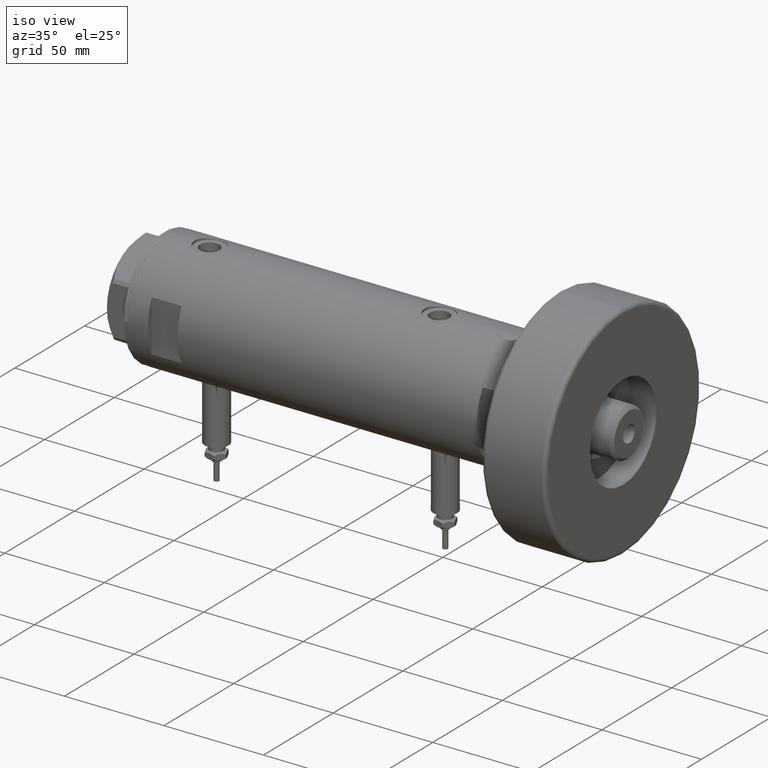
[diagram: clean part render]
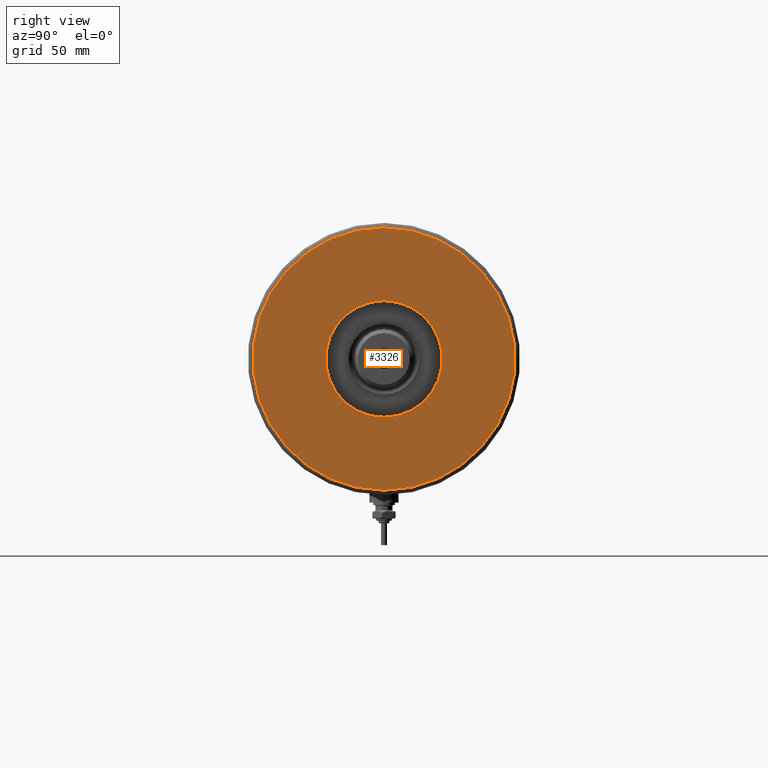
[diagram: tour spotlight — one face highlighted and labeled with its STEP entity id]
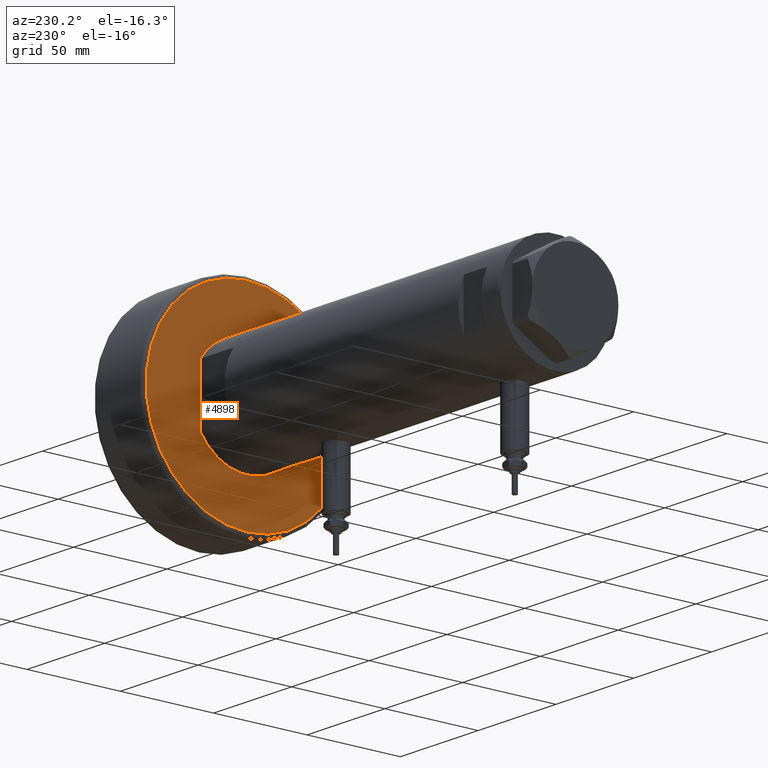
[diagram: tour spotlight — one face highlighted and labeled with its STEP entity id]
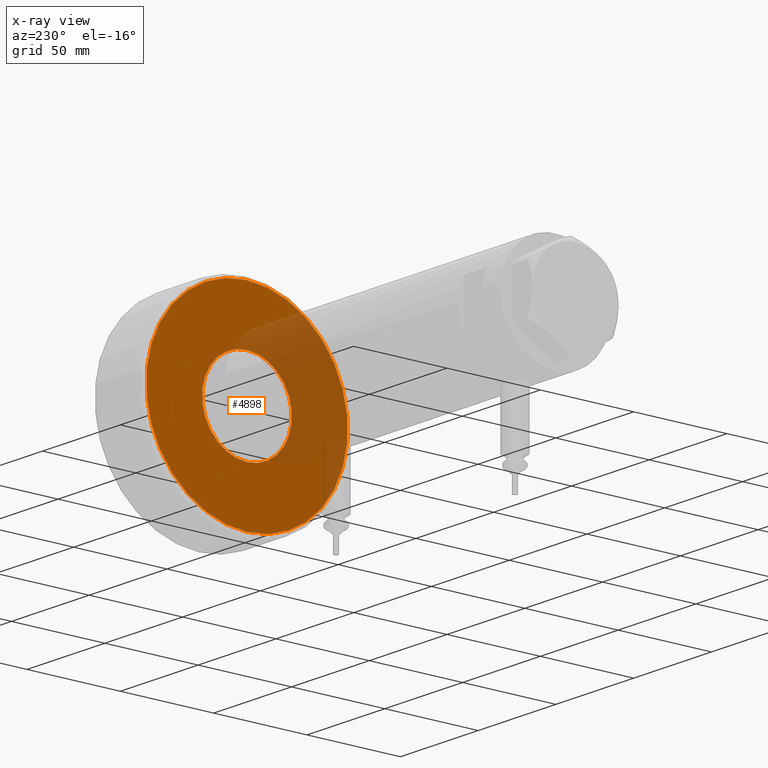
[diagram: x-ray of the same camera — body ghosted, this tour face saturated]
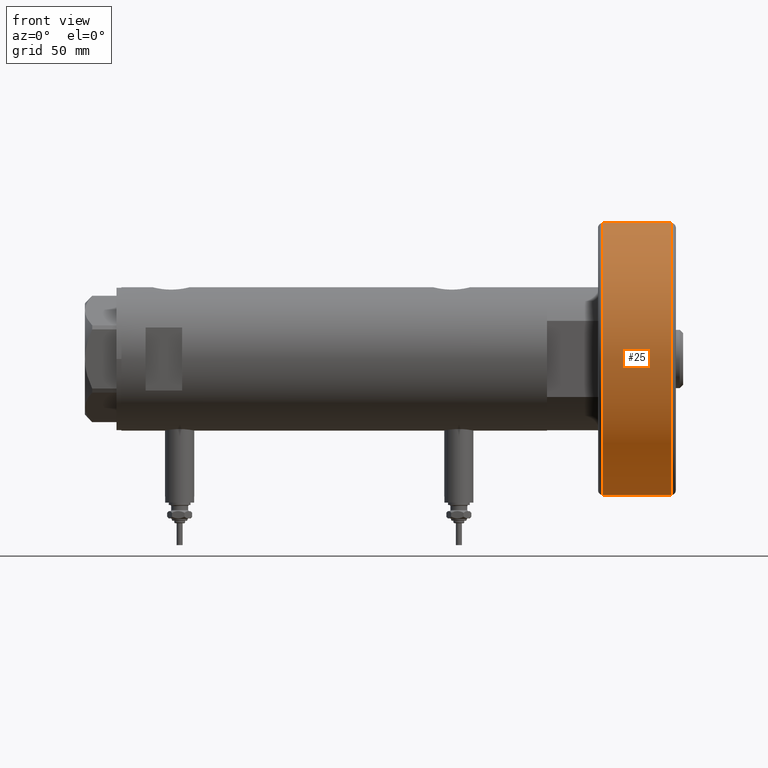
[diagram: tour spotlight — one face highlighted and labeled with its STEP entity id]
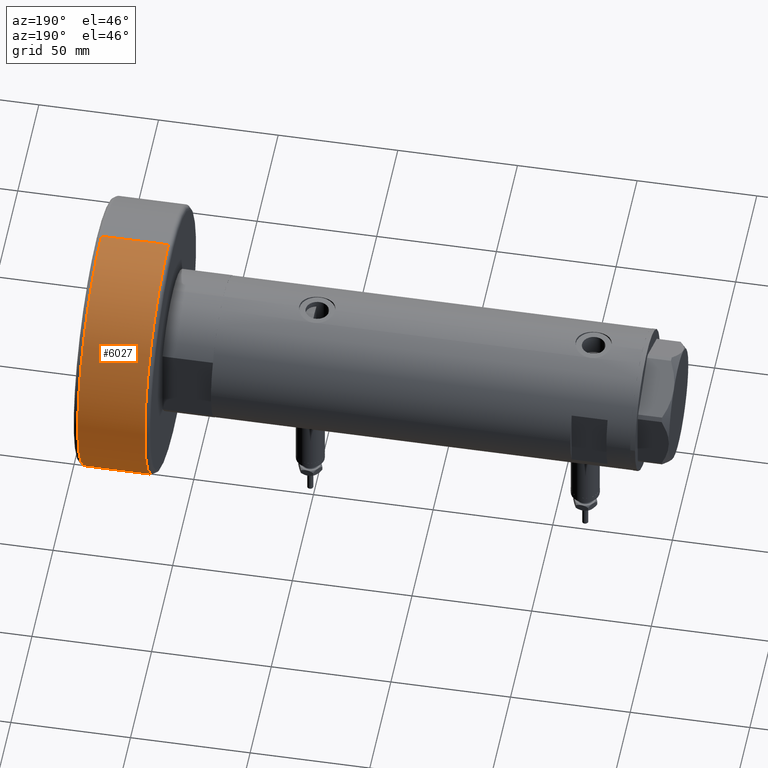
[diagram: tour spotlight — one face highlighted and labeled with its STEP entity id]
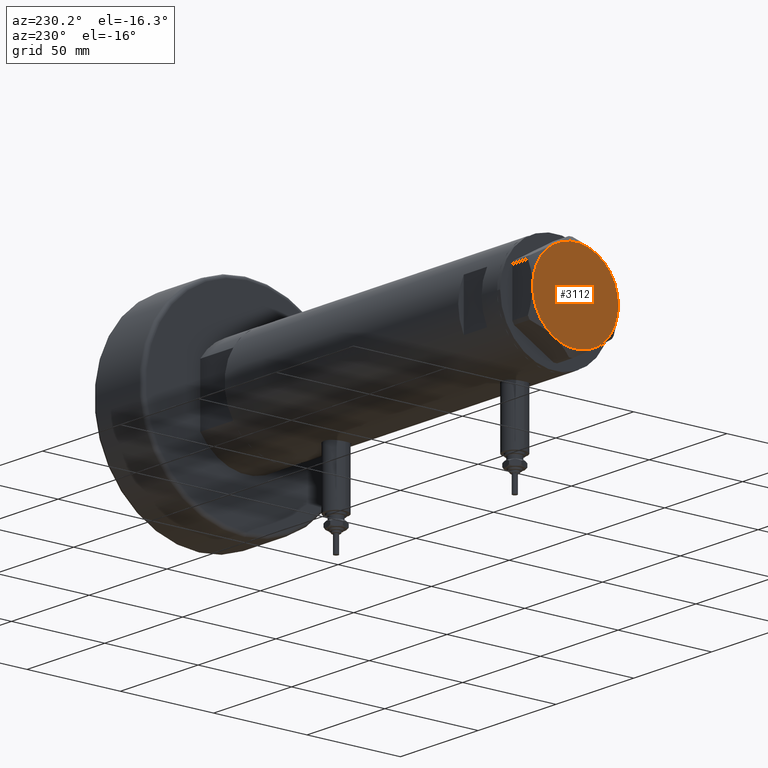
[diagram: tour spotlight — one face highlighted and labeled with its STEP entity id]
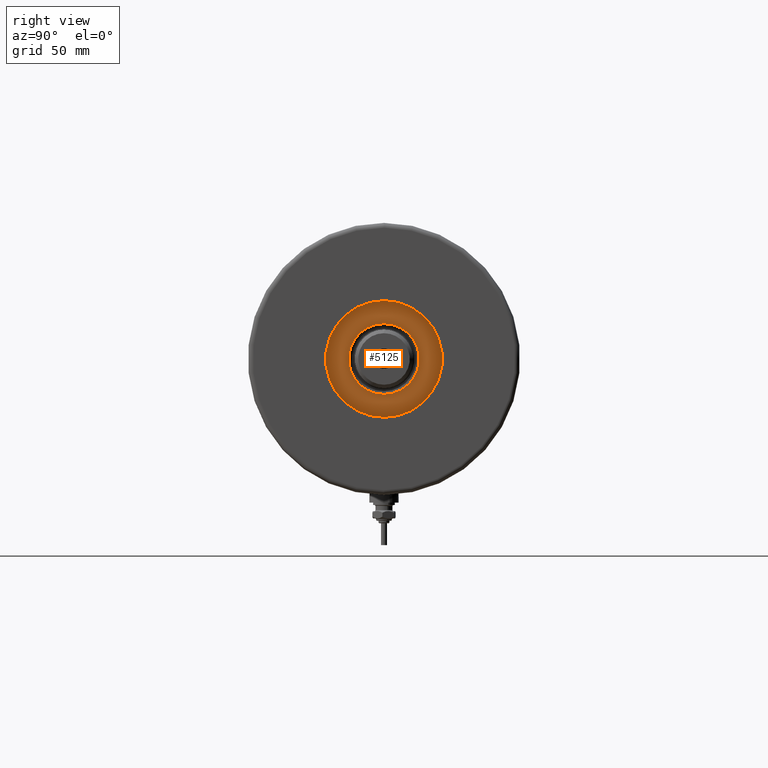
[diagram: tour spotlight — one face highlighted and labeled with its STEP entity id]
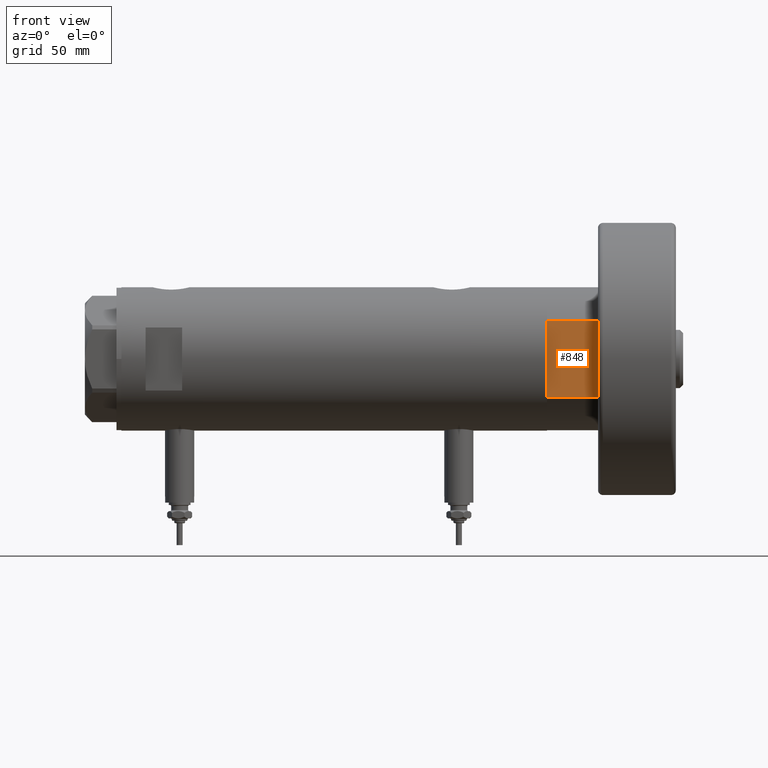
[diagram: tour spotlight — one face highlighted and labeled with its STEP entity id]
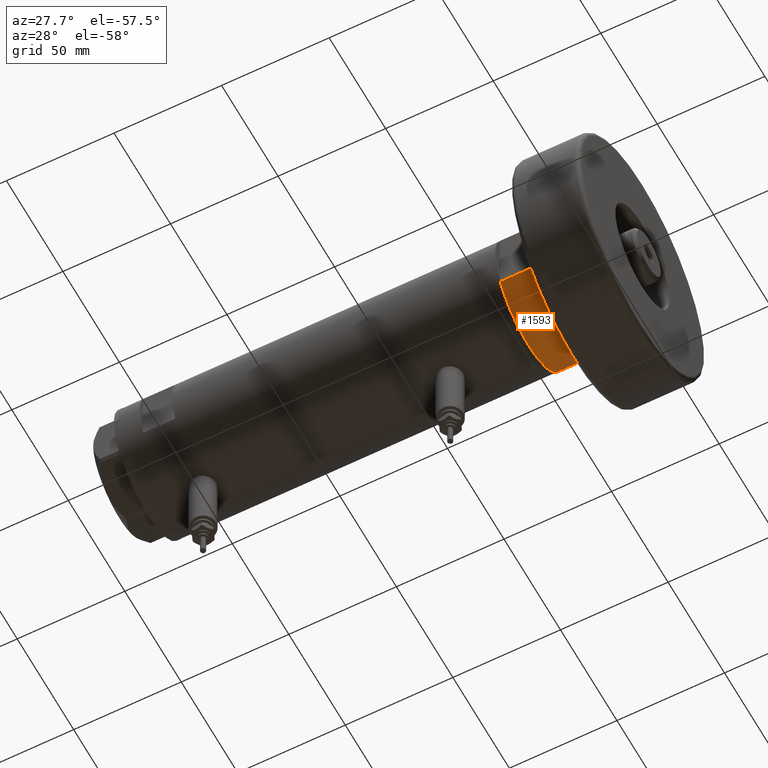
[diagram: tour spotlight — one face highlighted and labeled with its STEP entity id]
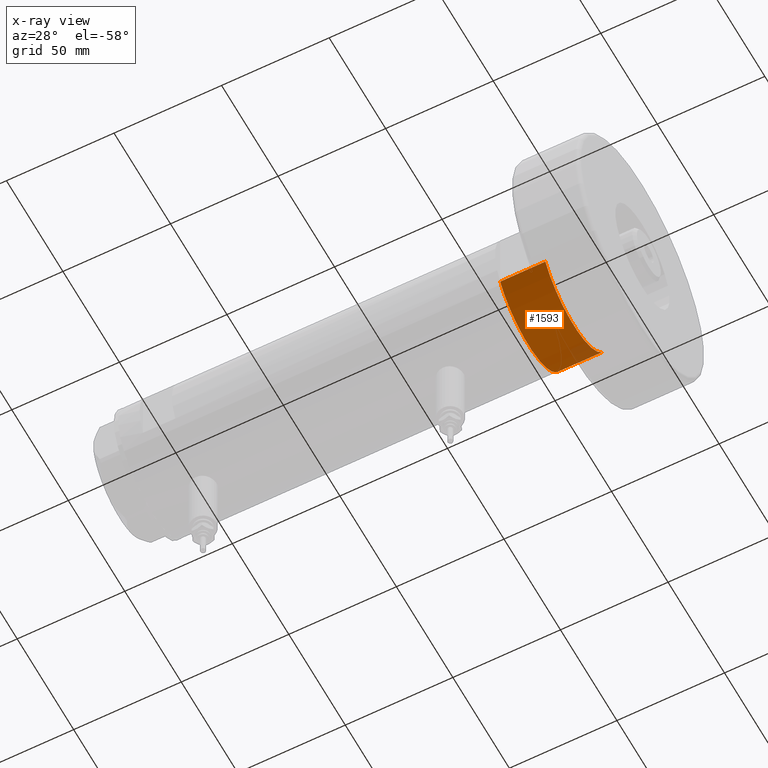
[diagram: x-ray of the same camera — body ghosted, this tour face saturated]
A machine part: a face-by-face anatomy tour. The part has 222 B-rep faces; the first image is the clean iso view, then the 8 largest visible faces are spotlighted one at a time (largest first), each with its STEP entity span.

Face 1 — right view, entity #3326. In plain terms, the highlighted planar face has unit normal (1, 0, -0).
Definition (entity closure, byte-faithful):
#139 = CARTESIAN_POINT ( 'NONE',  ( -24.00000000000000355, 2.939152317953648289E-15, 32.00000000000000000 ) ) ;
#141 = AXIS2_PLACEMENT_3D ( 'NONE', #1641, #1064, #162 ) ;
#162 = DIRECTION ( 'NONE',  ( 1.000000000000000000, 0.000000000000000000, 0.000000000000000000 ) ) ;
#229 = CARTESIAN_POINT ( 'NONE',  ( -54.00000000000000000, 6.735557395310443404E-15, 32.00000000000000000 ) ) ;
#248 = DIRECTION ( 'NONE',  ( 1.000000000000000000, 0.000000000000000000, -0.000000000000000000 ) ) ;
#313 = PLANE ( 'NONE',  #1688 ) ;
#346 = CIRCLE ( 'NONE', #141, 24.00000000000000355 ) ;
#373 = CARTESIAN_POINT ( 'NONE',  ( 54.00000000000000000, 0.000000000000000000, 32.00000000000000000 ) ) ;
#407 = DIRECTION ( 'NONE',  ( 1.000000000000000000, 0.000000000000000000, 0.000000000000000000 ) ) ;
#420 = DIRECTION ( 'NONE',  ( 0.000000000000000000, 0.000000000000000000, 1.000000000000000000 ) ) ;
#458 = EDGE_CURVE ( 'NONE', #1603, #4244, #874, .T. ) ;
#665 = ORIENTED_EDGE ( 'NONE', *, *, #4313, .T. ) ;
#762 = CARTESIAN_POINT ( 'NONE',  ( 0.000000000000000000, 0.000000000000000000, 32.00000000000000000 ) ) ;
#874 = CIRCLE ( 'NONE', #1695, 24.00000000000000355 ) ;
#960 = CARTESIAN_POINT ( 'NONE',  ( 24.00000000000000355, 0.000000000000000000, 32.00000000000000000 ) ) ;
#1006 = ORIENTED_EDGE ( 'NONE', *, *, #458, .F. ) ;
#1064 = DIRECTION ( 'NONE',  ( 0.000000000000000000, 0.000000000000000000, 1.000000000000000000 ) ) ;
#1248 = DIRECTION ( 'NONE',  ( 0.000000000000000000, 0.000000000000000000, 1.000000000000000000 ) ) ;
#1290 = AXIS2_PLACEMENT_3D ( 'NONE', #1421, #420, #2367 ) ;
#1421 = CARTESIAN_POINT ( 'NONE',  ( 0.000000000000000000, 0.000000000000000000, 32.00000000000000000 ) ) ;
#1603 = VERTEX_POINT ( 'NONE', #139 ) ;
#1641 = CARTESIAN_POINT ( 'NONE',  ( 0.000000000000000000, 0.000000000000000000, 32.00000000000000000 ) ) ;
#1688 = AXIS2_PLACEMENT_3D ( 'NONE', #762, #4171, #248 ) ;
#1695 = AXIS2_PLACEMENT_3D ( 'NONE', #5207, #4733, #407 ) ;
#2292 = EDGE_CURVE ( 'NONE', #5179, #2652, #4414, .T. ) ;
#2303 = CIRCLE ( 'NONE', #1290, 54.00000000000000000 ) ;
#2367 = DIRECTION ( 'NONE',  ( 1.000000000000000000, 0.000000000000000000, 0.000000000000000000 ) ) ;
#2652 = VERTEX_POINT ( 'NONE', #229 ) ;
#2690 = AXIS2_PLACEMENT_3D ( 'NONE', #3956, #1248, #5161 ) ;
#2844 = EDGE_CURVE ( 'NONE', #4244, #1603, #346, .T. ) ;
#3165 = EDGE_LOOP ( 'NONE', ( #6122, #1006 ) ) ;
#3198 = EDGE_LOOP ( 'NONE', ( #6012, #665 ) ) ;
#3326 = ADVANCED_FACE ( 'NONE', ( #3661, #5092 ), #313, .T. ) ;
#3661 = FACE_OUTER_BOUND ( 'NONE', #3198, .T. ) ;
#3956 = CARTESIAN_POINT ( 'NONE',  ( 0.000000000000000000, 0.000000000000000000, 32.00000000000000000 ) ) ;
#4171 = DIRECTION ( 'NONE',  ( 0.000000000000000000, 0.000000000000000000, 1.000000000000000000 ) ) ;
#4244 = VERTEX_POINT ( 'NONE', #960 ) ;
#4313 = EDGE_CURVE ( 'NONE', #2652, #5179, #2303, .T. ) ;
#4414 = CIRCLE ( 'NONE', #2690, 54.00000000000000000 ) ;
#4733 = DIRECTION ( 'NONE',  ( 0.000000000000000000, 0.000000000000000000, 1.000000000000000000 ) ) ;
#5092 = FACE_BOUND ( 'NONE', #3165, .T. ) ;
#5161 = DIRECTION ( 'NONE',  ( 1.000000000000000000, 0.000000000000000000, 0.000000000000000000 ) ) ;
#5179 = VERTEX_POINT ( 'NONE', #373 ) ;
#5207 = CARTESIAN_POINT ( 'NONE',  ( 0.000000000000000000, 0.000000000000000000, 32.00000000000000000 ) ) ;
#6012 = ORIENTED_EDGE ( 'NONE', *, *, #2292, .T. ) ;
#6122 = ORIENTED_EDGE ( 'NONE', *, *, #2844, .F. ) ;

Face 2 — auxiliary view, entity #4898. An x-ray twin of the same camera follows (body ghosted, this face saturated) — the face is partly hidden behind the body. In plain terms, the highlighted planar face has unit normal (1, 0, -0).
Definition (entity closure, byte-faithful):
#416 = DIRECTION ( 'NONE',  ( 0.000000000000000000, 0.000000000000000000, 1.000000000000000000 ) ) ;
#444 = PLANE ( 'NONE',  #781 ) ;
#781 = AXIS2_PLACEMENT_3D ( 'NONE', #4844, #416, #2039 ) ;
#785 = AXIS2_PLACEMENT_3D ( 'NONE', #5530, #2647, #4584 ) ;
#986 = CIRCLE ( 'NONE', #2611, 24.00000000000000355 ) ;
#1247 = ORIENTED_EDGE ( 'NONE', *, *, #5164, .T. ) ;
#1483 = CIRCLE ( 'NONE', #5743, 24.00000000000000355 ) ;
#1948 = DIRECTION ( 'NONE',  ( -0.000000000000000000, -0.000000000000000000, -1.000000000000000000 ) ) ;
#1989 = CARTESIAN_POINT ( 'NONE',  ( 0.000000000000000000, 0.000000000000000000, 0.000000000000000000 ) ) ;
#2039 = DIRECTION ( 'NONE',  ( 1.000000000000000000, 0.000000000000000000, -0.000000000000000000 ) ) ;
#2268 = EDGE_LOOP ( 'NONE', ( #2816, #2972 ) ) ;
#2298 = CIRCLE ( 'NONE', #3015, 54.00000000000000000 ) ;
#2380 = ORIENTED_EDGE ( 'NONE', *, *, #3770, .T. ) ;
#2552 = CARTESIAN_POINT ( 'NONE',  ( -24.00000000000000355, 2.939152317953648289E-15, 0.000000000000000000 ) ) ;
#2580 = CARTESIAN_POINT ( 'NONE',  ( 0.000000000000000000, 0.000000000000000000, 0.000000000000000000 ) ) ;
#2611 = AXIS2_PLACEMENT_3D ( 'NONE', #1989, #4007, #3037 ) ;
#2647 = DIRECTION ( 'NONE',  ( -0.000000000000000000, -0.000000000000000000, -1.000000000000000000 ) ) ;
#2816 = ORIENTED_EDGE ( 'NONE', *, *, #3244, .T. ) ;
#2885 = DIRECTION ( 'NONE',  ( 1.000000000000000000, 0.000000000000000000, 0.000000000000000000 ) ) ;
#2909 = EDGE_LOOP ( 'NONE', ( #1247, #2380 ) ) ;
#2972 = ORIENTED_EDGE ( 'NONE', *, *, #4397, .T. ) ;
#3015 = AXIS2_PLACEMENT_3D ( 'NONE', #5324, #1948, #2885 ) ;
#3037 = DIRECTION ( 'NONE',  ( 1.000000000000000000, 0.000000000000000000, 0.000000000000000000 ) ) ;
#3235 = VERTEX_POINT ( 'NONE', #2552 ) ;
#3244 = EDGE_CURVE ( 'NONE', #5096, #3235, #1483, .T. ) ;
#3337 = CARTESIAN_POINT ( 'NONE',  ( -54.00000000000000000, 6.735557395310443404E-15, 0.000000000000000000 ) ) ;
#3770 = EDGE_CURVE ( 'NONE', #3785, #3805, #2298, .T. ) ;
#3785 = VERTEX_POINT ( 'NONE', #3337 ) ;
#3799 = CARTESIAN_POINT ( 'NONE',  ( 54.00000000000000000, 0.000000000000000000, 0.000000000000000000 ) ) ;
#3805 = VERTEX_POINT ( 'NONE', #3799 ) ;
#4007 = DIRECTION ( 'NONE',  ( 0.000000000000000000, 0.000000000000000000, 1.000000000000000000 ) ) ;
#4332 = FACE_BOUND ( 'NONE', #2268, .T. ) ;
#4369 = FACE_OUTER_BOUND ( 'NONE', #2909, .T. ) ;
#4397 = EDGE_CURVE ( 'NONE', #3235, #5096, #986, .T. ) ;
#4584 = DIRECTION ( 'NONE',  ( 1.000000000000000000, 0.000000000000000000, 0.000000000000000000 ) ) ;
#4844 = CARTESIAN_POINT ( 'NONE',  ( 0.000000000000000000, 0.000000000000000000, 0.000000000000000000 ) ) ;
#4898 = ADVANCED_FACE ( 'NONE', ( #4369, #4332 ), #444, .F. ) ;
#5096 = VERTEX_POINT ( 'NONE', #5116 ) ;
#5116 = CARTESIAN_POINT ( 'NONE',  ( 24.00000000000000355, 0.000000000000000000, 0.000000000000000000 ) ) ;
#5164 = EDGE_CURVE ( 'NONE', #3805, #3785, #5969, .T. ) ;
#5324 = CARTESIAN_POINT ( 'NONE',  ( 0.000000000000000000, 0.000000000000000000, 0.000000000000000000 ) ) ;
#5441 = DIRECTION ( 'NONE',  ( 1.000000000000000000, 0.000000000000000000, 0.000000000000000000 ) ) ;
#5530 = CARTESIAN_POINT ( 'NONE',  ( 0.000000000000000000, 0.000000000000000000, 0.000000000000000000 ) ) ;
#5743 = AXIS2_PLACEMENT_3D ( 'NONE', #2580, #5893, #5441 ) ;
#5893 = DIRECTION ( 'NONE',  ( 0.000000000000000000, 0.000000000000000000, 1.000000000000000000 ) ) ;
#5969 = CIRCLE ( 'NONE', #785, 54.00000000000000000 ) ;

Face 3 — front view, entity #25. In plain terms, the highlighted cylindrical surface (partial cylindrical patch) has radius 56 mm, axis along (-1, -0, 0).
Definition (entity closure, byte-faithful):
#25 = ADVANCED_FACE ( 'NONE', ( #2966 ), #4422, .T. ) ;
#34 = VECTOR ( 'NONE', #5960, 1000.000000000000000 ) ;
#136 = VECTOR ( 'NONE', #5833, 1000.000000000000000 ) ;
#241 = ORIENTED_EDGE ( 'NONE', *, *, #2115, .F. ) ;
#1909 = CARTESIAN_POINT ( 'NONE',  ( -56.00000000000000000, 0.000000000000000000, 30.00000000000000000 ) ) ;
#1964 = EDGE_CURVE ( 'NONE', #3138, #2137, #6051, .T. ) ;
#1982 = ORIENTED_EDGE ( 'NONE', *, *, #1964, .T. ) ;
#2006 = DIRECTION ( 'NONE',  ( 1.000000000000000000, 0.000000000000000000, 0.000000000000000000 ) ) ;
#2064 = DIRECTION ( 'NONE',  ( -0.000000000000000000, -0.000000000000000000, -1.000000000000000000 ) ) ;
#2086 = CARTESIAN_POINT ( 'NONE',  ( -56.00000000000000000, 0.000000000000000000, 32.00000000000000000 ) ) ;
#2115 = EDGE_CURVE ( 'NONE', #3138, #4788, #6252, .T. ) ;
#2137 = VERTEX_POINT ( 'NONE', #1909 ) ;
#2198 = AXIS2_PLACEMENT_3D ( 'NONE', #2597, #2064, #2006 ) ;
#2218 = CARTESIAN_POINT ( 'NONE',  ( 56.00000000000000000, 6.858022075225178552E-15, 2.000000000000001776 ) ) ;
#2244 = EDGE_CURVE ( 'NONE', #2137, #4974, #4913, .T. ) ;
#2553 = ORIENTED_EDGE ( 'NONE', *, *, #2244, .T. ) ;
#2597 = CARTESIAN_POINT ( 'NONE',  ( 0.000000000000000000, 0.000000000000000000, 30.00000000000000000 ) ) ;
#2853 = EDGE_CURVE ( 'NONE', #4974, #4788, #6043, .T. ) ;
#2876 = CARTESIAN_POINT ( 'NONE',  ( 56.00000000000000000, 6.858022075225178552E-15, 30.00000000000000000 ) ) ;
#2937 = DIRECTION ( 'NONE',  ( -0.000000000000000000, -0.000000000000000000, -1.000000000000000000 ) ) ;
#2966 = FACE_OUTER_BOUND ( 'NONE', #5701, .T. ) ;
#3010 = CARTESIAN_POINT ( 'NONE',  ( 0.000000000000000000, 0.000000000000000000, 2.000000000000001776 ) ) ;
#3072 = DIRECTION ( 'NONE',  ( 0.000000000000000000, 0.000000000000000000, 1.000000000000000000 ) ) ;
#3138 = VERTEX_POINT ( 'NONE', #2876 ) ;
#3614 = AXIS2_PLACEMENT_3D ( 'NONE', #5887, #2937, #4875 ) ;
#3911 = CARTESIAN_POINT ( 'NONE',  ( -56.00000000000000000, 0.000000000000000000, 2.000000000000001776 ) ) ;
#4278 = CARTESIAN_POINT ( 'NONE',  ( 56.00000000000000000, 6.858022075225178552E-15, 32.00000000000000000 ) ) ;
#4422 = CYLINDRICAL_SURFACE ( 'NONE', #3614, 56.00000000000000000 ) ;
#4788 = VERTEX_POINT ( 'NONE', #2218 ) ;
#4875 = DIRECTION ( 'NONE',  ( -1.000000000000000000, 0.000000000000000000, 0.000000000000000000 ) ) ;
#4913 = LINE ( 'NONE', #2086, #34 ) ;
#4974 = VERTEX_POINT ( 'NONE', #3911 ) ;
#5005 = DIRECTION ( 'NONE',  ( 1.000000000000000000, 0.000000000000000000, 0.000000000000000000 ) ) ;
#5698 = ORIENTED_EDGE ( 'NONE', *, *, #2853, .T. ) ;
#5701 = EDGE_LOOP ( 'NONE', ( #241, #1982, #2553, #5698 ) ) ;
#5739 = AXIS2_PLACEMENT_3D ( 'NONE', #3010, #3072, #5005 ) ;
#5833 = DIRECTION ( 'NONE',  ( -0.000000000000000000, -0.000000000000000000, -1.000000000000000000 ) ) ;
#5887 = CARTESIAN_POINT ( 'NONE',  ( 0.000000000000000000, 0.000000000000000000, 32.00000000000000000 ) ) ;
#5960 = DIRECTION ( 'NONE',  ( -0.000000000000000000, -0.000000000000000000, -1.000000000000000000 ) ) ;
#6043 = CIRCLE ( 'NONE', #5739, 56.00000000000000000 ) ;
#6051 = CIRCLE ( 'NONE', #2198, 56.00000000000000000 ) ;
#6252 = LINE ( 'NONE', #4278, #136 ) ;

Face 4 — auxiliary view, entity #6027. In plain terms, the highlighted cylindrical surface (partial cylindrical patch) has radius 56 mm, axis along (-1, -0, 0).
Definition (entity closure, byte-faithful):
#34 = VECTOR ( 'NONE', #5960, 1000.000000000000000 ) ;
#136 = VECTOR ( 'NONE', #5833, 1000.000000000000000 ) ;
#271 = DIRECTION ( 'NONE',  ( 1.000000000000000000, 0.000000000000000000, 0.000000000000000000 ) ) ;
#684 = DIRECTION ( 'NONE',  ( -0.000000000000000000, -0.000000000000000000, -1.000000000000000000 ) ) ;
#1132 = FACE_OUTER_BOUND ( 'NONE', #5533, .T. ) ;
#1513 = AXIS2_PLACEMENT_3D ( 'NONE', #4153, #684, #2881 ) ;
#1696 = CIRCLE ( 'NONE', #3518, 56.00000000000000000 ) ;
#1909 = CARTESIAN_POINT ( 'NONE',  ( -56.00000000000000000, 0.000000000000000000, 30.00000000000000000 ) ) ;
#2086 = CARTESIAN_POINT ( 'NONE',  ( -56.00000000000000000, 0.000000000000000000, 32.00000000000000000 ) ) ;
#2115 = EDGE_CURVE ( 'NONE', #3138, #4788, #6252, .T. ) ;
#2137 = VERTEX_POINT ( 'NONE', #1909 ) ;
#2218 = CARTESIAN_POINT ( 'NONE',  ( 56.00000000000000000, 6.858022075225178552E-15, 2.000000000000001776 ) ) ;
#2222 = CIRCLE ( 'NONE', #3938, 56.00000000000000000 ) ;
#2244 = EDGE_CURVE ( 'NONE', #2137, #4974, #4913, .T. ) ;
#2508 = DIRECTION ( 'NONE',  ( 0.000000000000000000, 0.000000000000000000, 1.000000000000000000 ) ) ;
#2525 = ORIENTED_EDGE ( 'NONE', *, *, #2244, .F. ) ;
#2876 = CARTESIAN_POINT ( 'NONE',  ( 56.00000000000000000, 6.858022075225178552E-15, 30.00000000000000000 ) ) ;
#2881 = DIRECTION ( 'NONE',  ( -1.000000000000000000, 0.000000000000000000, 0.000000000000000000 ) ) ;
#3138 = VERTEX_POINT ( 'NONE', #2876 ) ;
#3518 = AXIS2_PLACEMENT_3D ( 'NONE', #3706, #6099, #271 ) ;
#3579 = CYLINDRICAL_SURFACE ( 'NONE', #1513, 56.00000000000000000 ) ;
#3588 = EDGE_CURVE ( 'NONE', #2137, #3138, #1696, .T. ) ;
#3706 = CARTESIAN_POINT ( 'NONE',  ( 0.000000000000000000, 0.000000000000000000, 30.00000000000000000 ) ) ;
#3911 = CARTESIAN_POINT ( 'NONE',  ( -56.00000000000000000, 0.000000000000000000, 2.000000000000001776 ) ) ;
#3938 = AXIS2_PLACEMENT_3D ( 'NONE', #4409, #2508, #5327 ) ;
#4153 = CARTESIAN_POINT ( 'NONE',  ( 0.000000000000000000, 0.000000000000000000, 32.00000000000000000 ) ) ;
#4278 = CARTESIAN_POINT ( 'NONE',  ( 56.00000000000000000, 6.858022075225178552E-15, 32.00000000000000000 ) ) ;
#4409 = CARTESIAN_POINT ( 'NONE',  ( 0.000000000000000000, 0.000000000000000000, 2.000000000000001776 ) ) ;
#4788 = VERTEX_POINT ( 'NONE', #2218 ) ;
#4913 = LINE ( 'NONE', #2086, #34 ) ;
#4974 = VERTEX_POINT ( 'NONE', #3911 ) ;
#5327 = DIRECTION ( 'NONE',  ( 1.000000000000000000, 0.000000000000000000, 0.000000000000000000 ) ) ;
#5492 = ORIENTED_EDGE ( 'NONE', *, *, #5824, .T. ) ;
#5533 = EDGE_LOOP ( 'NONE', ( #5820, #5942, #5492, #2525 ) ) ;
#5820 = ORIENTED_EDGE ( 'NONE', *, *, #3588, .T. ) ;
#5824 = EDGE_CURVE ( 'NONE', #4788, #4974, #2222, .T. ) ;
#5833 = DIRECTION ( 'NONE',  ( -0.000000000000000000, -0.000000000000000000, -1.000000000000000000 ) ) ;
#5942 = ORIENTED_EDGE ( 'NONE', *, *, #2115, .T. ) ;
#5960 = DIRECTION ( 'NONE',  ( -0.000000000000000000, -0.000000000000000000, -1.000000000000000000 ) ) ;
#6027 = ADVANCED_FACE ( 'NONE', ( #1132 ), #3579, .T. ) ;
#6099 = DIRECTION ( 'NONE',  ( -0.000000000000000000, -0.000000000000000000, -1.000000000000000000 ) ) ;
#6252 = LINE ( 'NONE', #4278, #136 ) ;

Face 5 — auxiliary view, entity #3112. In plain terms, the highlighted planar face has unit normal (-1, -0, 0).
Definition (entity closure, byte-faithful):
#168 = CARTESIAN_POINT ( 'NONE',  ( 11.49999999999990408, 19.91858428704219364, 13.00000000000000000 ) ) ;
#621 = DIRECTION ( 'NONE',  ( 0.000000000000000000, 0.000000000000000000, 1.000000000000000000 ) ) ;
#676 = CIRCLE ( 'NONE', #3720, 23.00000000000004619 ) ;
#733 = DIRECTION ( 'NONE',  ( 0.000000000000000000, 0.000000000000000000, 1.000000000000000000 ) ) ;
#844 = EDGE_CURVE ( 'NONE', #1726, #4949, #676, .T. ) ;
#1030 = VERTEX_POINT ( 'NONE', #4853 ) ;
#1070 = CIRCLE ( 'NONE', #3413, 23.00000000000004619 ) ;
#1162 = ORIENTED_EDGE ( 'NONE', *, *, #844, .T. ) ;
#1250 = DIRECTION ( 'NONE',  ( 0.000000000000000000, 0.000000000000000000, 1.000000000000000000 ) ) ;
#1254 = DIRECTION ( 'NONE',  ( 0.000000000000000000, 0.000000000000000000, 1.000000000000000000 ) ) ;
#1319 = DIRECTION ( 'NONE',  ( 1.000000000000000000, 0.000000000000000000, 0.000000000000000000 ) ) ;
#1419 = PLANE ( 'NONE',  #3412 ) ;
#1451 = EDGE_CURVE ( 'NONE', #2033, #1704, #1070, .T. ) ;
#1492 = CARTESIAN_POINT ( 'NONE',  ( -11.49999999999990585, -19.91858428704219364, 13.00000000000000000 ) ) ;
#1649 = CARTESIAN_POINT ( 'NONE',  ( 0.000000000000000000, 0.000000000000000000, 13.00000000000000000 ) ) ;
#1683 = AXIS2_PLACEMENT_3D ( 'NONE', #5610, #1250, #1319 ) ;
#1704 = VERTEX_POINT ( 'NONE', #4219 ) ;
#1726 = VERTEX_POINT ( 'NONE', #1492 ) ;
#1788 = CARTESIAN_POINT ( 'NONE',  ( 0.000000000000000000, 0.000000000000000000, 13.00000000000000000 ) ) ;
#1865 = CARTESIAN_POINT ( 'NONE',  ( 0.000000000000000000, 0.000000000000000000, 13.00000000000000000 ) ) ;
#1918 = EDGE_LOOP ( 'NONE', ( #4529, #2368, #5632, #4843, #5402, #1162 ) ) ;
#1929 = EDGE_CURVE ( 'NONE', #1704, #2919, #3610, .T. ) ;
#1935 = CARTESIAN_POINT ( 'NONE',  ( 0.000000000000000000, 0.000000000000000000, 13.00000000000000000 ) ) ;
#2033 = VERTEX_POINT ( 'NONE', #168 ) ;
#2093 = CIRCLE ( 'NONE', #6146, 23.00000000000004619 ) ;
#2336 = DIRECTION ( 'NONE',  ( 1.000000000000000000, 0.000000000000000000, 0.000000000000000000 ) ) ;
#2368 = ORIENTED_EDGE ( 'NONE', *, *, #2720, .T. ) ;
#2423 = EDGE_CURVE ( 'NONE', #2919, #1726, #5734, .T. ) ;
#2632 = DIRECTION ( 'NONE',  ( 1.000000000000000000, 0.000000000000000000, 0.000000000000000000 ) ) ;
#2714 = DIRECTION ( 'NONE',  ( 1.000000000000000000, 0.000000000000000000, 0.000000000000000000 ) ) ;
#2720 = EDGE_CURVE ( 'NONE', #1030, #2033, #2093, .T. ) ;
#2813 = DIRECTION ( 'NONE',  ( 0.000000000000000000, 0.000000000000000000, 1.000000000000000000 ) ) ;
#2919 = VERTEX_POINT ( 'NONE', #4566 ) ;
#2990 = EDGE_CURVE ( 'NONE', #4949, #1030, #4417, .T. ) ;
#3112 = ADVANCED_FACE ( 'NONE', ( #3291 ), #1419, .T. ) ;
#3225 = CARTESIAN_POINT ( 'NONE',  ( 0.000000000000000000, 0.000000000000000000, 13.00000000000000000 ) ) ;
#3291 = FACE_OUTER_BOUND ( 'NONE', #1918, .T. ) ;
#3412 = AXIS2_PLACEMENT_3D ( 'NONE', #1865, #2813, #4300 ) ;
#3413 = AXIS2_PLACEMENT_3D ( 'NONE', #1788, #4651, #4775 ) ;
#3610 = CIRCLE ( 'NONE', #4631, 23.00000000000004619 ) ;
#3720 = AXIS2_PLACEMENT_3D ( 'NONE', #3225, #733, #2714 ) ;
#4219 = CARTESIAN_POINT ( 'NONE',  ( -11.50000000000004441, 19.91858428704211548, 13.00000000000000000 ) ) ;
#4300 = DIRECTION ( 'NONE',  ( 1.000000000000000000, 0.000000000000000000, -0.000000000000000000 ) ) ;
#4396 = CARTESIAN_POINT ( 'NONE',  ( 11.50000000000018296, -19.91858428704203732, 13.00000000000000000 ) ) ;
#4417 = CIRCLE ( 'NONE', #1683, 23.00000000000004619 ) ;
#4478 = DIRECTION ( 'NONE',  ( 1.000000000000000000, 0.000000000000000000, 0.000000000000000000 ) ) ;
#4517 = AXIS2_PLACEMENT_3D ( 'NONE', #1935, #5220, #2336 ) ;
#4529 = ORIENTED_EDGE ( 'NONE', *, *, #2990, .T. ) ;
#4566 = CARTESIAN_POINT ( 'NONE',  ( -23.00000000000004619, -8.112498833180673323E-14, 13.00000000000000000 ) ) ;
#4631 = AXIS2_PLACEMENT_3D ( 'NONE', #1649, #621, #4478 ) ;
#4651 = DIRECTION ( 'NONE',  ( 0.000000000000000000, 0.000000000000000000, 1.000000000000000000 ) ) ;
#4666 = CARTESIAN_POINT ( 'NONE',  ( 0.000000000000000000, 0.000000000000000000, 13.00000000000000000 ) ) ;
#4775 = DIRECTION ( 'NONE',  ( 1.000000000000000000, 0.000000000000000000, 0.000000000000000000 ) ) ;
#4843 = ORIENTED_EDGE ( 'NONE', *, *, #1929, .T. ) ;
#4853 = CARTESIAN_POINT ( 'NONE',  ( 22.99999999999995026, 2.373657066004705010E-13, 13.00000000000000000 ) ) ;
#4949 = VERTEX_POINT ( 'NONE', #4396 ) ;
#5220 = DIRECTION ( 'NONE',  ( 0.000000000000000000, 0.000000000000000000, 1.000000000000000000 ) ) ;
#5402 = ORIENTED_EDGE ( 'NONE', *, *, #2423, .T. ) ;
#5610 = CARTESIAN_POINT ( 'NONE',  ( 0.000000000000000000, 0.000000000000000000, 13.00000000000000000 ) ) ;
#5632 = ORIENTED_EDGE ( 'NONE', *, *, #1451, .T. ) ;
#5734 = CIRCLE ( 'NONE', #4517, 23.00000000000004619 ) ;
#6146 = AXIS2_PLACEMENT_3D ( 'NONE', #4666, #1254, #2632 ) ;

Face 6 — right view, entity #5125. In plain terms, the highlighted planar face has unit normal (1, 0, -0).
Definition (entity closure, byte-faithful):
#28 = DIRECTION ( 'NONE',  ( 1.000000000000000000, 0.000000000000000000, 0.000000000000000000 ) ) ;
#472 = AXIS2_PLACEMENT_3D ( 'NONE', #2723, #832, #3171 ) ;
#832 = DIRECTION ( 'NONE',  ( 0.000000000000000000, 0.000000000000000000, 1.000000000000000000 ) ) ;
#873 = CARTESIAN_POINT ( 'NONE',  ( -14.54999999999997939, 1.781861092759396721E-15, 41.00000000000000000 ) ) ;
#895 = EDGE_LOOP ( 'NONE', ( #5132, #1782 ) ) ;
#968 = CIRCLE ( 'NONE', #4218, 24.00000000000000355 ) ;
#1211 = DIRECTION ( 'NONE',  ( 0.000000000000000000, 0.000000000000000000, 1.000000000000000000 ) ) ;
#1446 = EDGE_CURVE ( 'NONE', #5242, #2118, #968, .T. ) ;
#1782 = ORIENTED_EDGE ( 'NONE', *, *, #6215, .T. ) ;
#1814 = AXIS2_PLACEMENT_3D ( 'NONE', #5384, #3452, #28 ) ;
#2027 = CARTESIAN_POINT ( 'NONE',  ( 0.000000000000000000, 0.000000000000000000, 41.00000000000000000 ) ) ;
#2118 = VERTEX_POINT ( 'NONE', #4306 ) ;
#2200 = VERTEX_POINT ( 'NONE', #873 ) ;
#2556 = DIRECTION ( 'NONE',  ( 1.000000000000000000, 0.000000000000000000, 0.000000000000000000 ) ) ;
#2633 = CIRCLE ( 'NONE', #2732, 14.54999999999997939 ) ;
#2674 = FACE_OUTER_BOUND ( 'NONE', #2781, .T. ) ;
#2710 = DIRECTION ( 'NONE',  ( 1.000000000000000000, 0.000000000000000000, 0.000000000000000000 ) ) ;
#2723 = CARTESIAN_POINT ( 'NONE',  ( 0.000000000000000000, 0.000000000000000000, 41.00000000000000000 ) ) ;
#2732 = AXIS2_PLACEMENT_3D ( 'NONE', #2027, #5319, #2556 ) ;
#2781 = EDGE_LOOP ( 'NONE', ( #5130, #5113 ) ) ;
#3127 = AXIS2_PLACEMENT_3D ( 'NONE', #6079, #1211, #5153 ) ;
#3171 = DIRECTION ( 'NONE',  ( 1.000000000000000000, 0.000000000000000000, 0.000000000000000000 ) ) ;
#3373 = CARTESIAN_POINT ( 'NONE',  ( 24.00000000000000355, 2.939152317953648289E-15, 41.00000000000000000 ) ) ;
#3452 = DIRECTION ( 'NONE',  ( -0.000000000000000000, -0.000000000000000000, -1.000000000000000000 ) ) ;
#3824 = CIRCLE ( 'NONE', #1814, 14.54999999999997939 ) ;
#4138 = EDGE_CURVE ( 'NONE', #2118, #5242, #6168, .T. ) ;
#4218 = AXIS2_PLACEMENT_3D ( 'NONE', #5117, #5003, #2710 ) ;
#4306 = CARTESIAN_POINT ( 'NONE',  ( -24.00000000000000355, 0.000000000000000000, 41.00000000000000000 ) ) ;
#4438 = EDGE_CURVE ( 'NONE', #5691, #2200, #3824, .T. ) ;
#4611 = PLANE ( 'NONE',  #3127 ) ;
#5003 = DIRECTION ( 'NONE',  ( 0.000000000000000000, 0.000000000000000000, 1.000000000000000000 ) ) ;
#5113 = ORIENTED_EDGE ( 'NONE', *, *, #1446, .T. ) ;
#5117 = CARTESIAN_POINT ( 'NONE',  ( 0.000000000000000000, 0.000000000000000000, 41.00000000000000000 ) ) ;
#5125 = ADVANCED_FACE ( 'NONE', ( #5181, #2674 ), #4611, .T. ) ;
#5130 = ORIENTED_EDGE ( 'NONE', *, *, #4138, .T. ) ;
#5132 = ORIENTED_EDGE ( 'NONE', *, *, #4438, .T. ) ;
#5153 = DIRECTION ( 'NONE',  ( 1.000000000000000000, 0.000000000000000000, -0.000000000000000000 ) ) ;
#5181 = FACE_BOUND ( 'NONE', #895, .T. ) ;
#5242 = VERTEX_POINT ( 'NONE', #3373 ) ;
#5319 = DIRECTION ( 'NONE',  ( -0.000000000000000000, -0.000000000000000000, -1.000000000000000000 ) ) ;
#5363 = CARTESIAN_POINT ( 'NONE',  ( 14.54999999999997939, 0.000000000000000000, 41.00000000000000000 ) ) ;
#5384 = CARTESIAN_POINT ( 'NONE',  ( 0.000000000000000000, 0.000000000000000000, 41.00000000000000000 ) ) ;
#5691 = VERTEX_POINT ( 'NONE', #5363 ) ;
#6079 = CARTESIAN_POINT ( 'NONE',  ( 0.000000000000000000, 0.000000000000000000, 41.00000000000000000 ) ) ;
#6168 = CIRCLE ( 'NONE', #472, 24.00000000000000355 ) ;
#6215 = EDGE_CURVE ( 'NONE', #2200, #5691, #2633, .T. ) ;

Face 7 — front view, entity #848. In plain terms, the highlighted planar face has unit normal (-0, 1, 0).
Definition (entity closure, byte-faithful):
#169 = VECTOR ( 'NONE', #2522, 1000.000000000000000 ) ;
#224 = ORIENTED_EDGE ( 'NONE', *, *, #1085, .T. ) ;
#225 = CARTESIAN_POINT ( 'NONE',  ( -15.66045976336583401, -25.00000000000000000, 21.00000000000000000 ) ) ;
#255 = CARTESIAN_POINT ( 'NONE',  ( -15.66045976336583401, -25.00000000000000000, 0.000000000000000000 ) ) ;
#257 = VECTOR ( 'NONE', #427, 1000.000000000000000 ) ;
#301 = CARTESIAN_POINT ( 'NONE',  ( -15.66045976336583045, -24.99999999999999645, 20.99999999999999645 ) ) ;
#427 = DIRECTION ( 'NONE',  ( -0.000000000000000000, -0.000000000000000000, 1.000000000000000000 ) ) ;
#734 = VERTEX_POINT ( 'NONE', #3083 ) ;
#848 = ADVANCED_FACE ( 'NONE', ( #1181 ), #4143, .F. ) ;
#1085 = EDGE_CURVE ( 'NONE', #2053, #2494, #2278, .T. ) ;
#1172 = EDGE_LOOP ( 'NONE', ( #3158, #1245, #1382, #3410, #3282, #224 ) ) ;
#1181 = FACE_OUTER_BOUND ( 'NONE', #1172, .T. ) ;
#1245 = ORIENTED_EDGE ( 'NONE', *, *, #3772, .F. ) ;
#1291 = CARTESIAN_POINT ( 'NONE',  ( -15.66045976336583401, -25.00000000000000000, 0.000000000000000000 ) ) ;
#1382 = ORIENTED_EDGE ( 'NONE', *, *, #6140, .F. ) ;
#1430 = CARTESIAN_POINT ( 'NONE',  ( -15.66045976336583401, -25.00000000000000000, 0.000000000000000000 ) ) ;
#1809 = AXIS2_PLACEMENT_3D ( 'NONE', #5604, #4557, #5571 ) ;
#1876 = LINE ( 'NONE', #1430, #257 ) ;
#1913 = VECTOR ( 'NONE', #3698, 1000.000000000000000 ) ;
#2035 = VECTOR ( 'NONE', #6157, 1000.000000000000000 ) ;
#2053 = VERTEX_POINT ( 'NONE', #4185 ) ;
#2213 = DIRECTION ( 'NONE',  ( -1.000000000000000000, -0.000000000000000000, -0.000000000000000000 ) ) ;
#2278 = LINE ( 'NONE', #4210, #2035 ) ;
#2378 = EDGE_CURVE ( 'NONE', #2053, #4295, #4619, .T. ) ;
#2435 = VERTEX_POINT ( 'NONE', #4784 ) ;
#2494 = VERTEX_POINT ( 'NONE', #4299 ) ;
#2522 = DIRECTION ( 'NONE',  ( -1.000000000000000000, -0.000000000000000000, -0.000000000000000000 ) ) ;
#3083 = CARTESIAN_POINT ( 'NONE',  ( -7.141428428542853091, -25.00000000000000000, 0.000000000000000000 ) ) ;
#3158 = ORIENTED_EDGE ( 'NONE', *, *, #4162, .T. ) ;
#3282 = ORIENTED_EDGE ( 'NONE', *, *, #2378, .F. ) ;
#3410 = ORIENTED_EDGE ( 'NONE', *, *, #5052, .F. ) ;
#3474 = LINE ( 'NONE', #5404, #169 ) ;
#3665 = VERTEX_POINT ( 'NONE', #301 ) ;
#3698 = DIRECTION ( 'NONE',  ( -1.000000000000000000, -0.000000000000000000, -0.000000000000000000 ) ) ;
#3701 = LINE ( 'NONE', #1291, #4458 ) ;
#3772 = EDGE_CURVE ( 'NONE', #2435, #3665, #1876, .T. ) ;
#4143 = PLANE ( 'NONE',  #1809 ) ;
#4162 = EDGE_CURVE ( 'NONE', #2494, #3665, #6154, .T. ) ;
#4185 = CARTESIAN_POINT ( 'NONE',  ( 15.66045976336583401, -25.00000000000000000, 0.000000000000000000 ) ) ;
#4210 = CARTESIAN_POINT ( 'NONE',  ( 15.66045976336583401, -25.00000000000000000, 0.000000000000000000 ) ) ;
#4245 = DIRECTION ( 'NONE',  ( -1.000000000000000000, -0.000000000000000000, -0.000000000000000000 ) ) ;
#4295 = VERTEX_POINT ( 'NONE', #4302 ) ;
#4299 = CARTESIAN_POINT ( 'NONE',  ( 15.66045976336583045, -25.00000000000000000, 21.00000000000000355 ) ) ;
#4302 = CARTESIAN_POINT ( 'NONE',  ( 7.141428428542853091, -25.00000000000000000, 0.000000000000000000 ) ) ;
#4458 = VECTOR ( 'NONE', #4245, 1000.000000000000000 ) ;
#4557 = DIRECTION ( 'NONE',  ( -0.000000000000000000, 1.000000000000000000, 0.000000000000000000 ) ) ;
#4619 = LINE ( 'NONE', #255, #5834 ) ;
#4784 = CARTESIAN_POINT ( 'NONE',  ( -15.66045976336582690, -25.00000000000000000, 0.000000000000000000 ) ) ;
#5052 = EDGE_CURVE ( 'NONE', #4295, #734, #3474, .T. ) ;
#5404 = CARTESIAN_POINT ( 'NONE',  ( -15.66045976336583401, -25.00000000000000000, 0.000000000000000000 ) ) ;
#5571 = DIRECTION ( 'NONE',  ( 0.000000000000000000, -0.000000000000000000, 1.000000000000000000 ) ) ;
#5604 = CARTESIAN_POINT ( 'NONE',  ( -15.66045976336583401, -25.00000000000000000, 0.000000000000000000 ) ) ;
#5834 = VECTOR ( 'NONE', #2213, 1000.000000000000000 ) ;
#6140 = EDGE_CURVE ( 'NONE', #734, #2435, #3701, .T. ) ;
#6154 = LINE ( 'NONE', #225, #1913 ) ;
#6157 = DIRECTION ( 'NONE',  ( -0.000000000000000000, -0.000000000000000000, 1.000000000000000000 ) ) ;

Face 8 — auxiliary view, entity #1593. An x-ray twin of the same camera follows (body ghosted, this face saturated) — the face is partly hidden behind the body. In plain terms, the highlighted cylindrical surface (partial cylindrical patch) has radius 29.5 mm, axis along (-1, -0, 0).
Definition (entity closure, byte-faithful):
#280 = ORIENTED_EDGE ( 'NONE', *, *, #6073, .F. ) ;
#790 = CIRCLE ( 'NONE', #4351, 29.50000000000000355 ) ;
#866 = AXIS2_PLACEMENT_3D ( 'NONE', #5053, #6008, #1656 ) ;
#903 = DIRECTION ( 'NONE',  ( 1.000000000000000000, 0.000000000000000000, 0.000000000000000000 ) ) ;
#1085 = EDGE_CURVE ( 'NONE', #2053, #2494, #2278, .T. ) ;
#1243 = DIRECTION ( 'NONE',  ( -0.000000000000000000, -0.000000000000000000, 1.000000000000000000 ) ) ;
#1325 = DIRECTION ( 'NONE',  ( 1.000000000000000000, 0.000000000000000000, 0.000000000000000000 ) ) ;
#1374 = ORIENTED_EDGE ( 'NONE', *, *, #3349, .T. ) ;
#1386 = DIRECTION ( 'NONE',  ( 0.000000000000000000, 0.000000000000000000, 1.000000000000000000 ) ) ;
#1499 = AXIS2_PLACEMENT_3D ( 'NONE', #5261, #2878, #903 ) ;
#1593 = ADVANCED_FACE ( 'NONE', ( #2605 ), #3115, .T. ) ;
#1656 = DIRECTION ( 'NONE',  ( -1.000000000000000000, 0.000000000000000000, 0.000000000000000000 ) ) ;
#2019 = ORIENTED_EDGE ( 'NONE', *, *, #4291, .T. ) ;
#2035 = VECTOR ( 'NONE', #6157, 1000.000000000000000 ) ;
#2049 = VERTEX_POINT ( 'NONE', #2509 ) ;
#2053 = VERTEX_POINT ( 'NONE', #4185 ) ;
#2278 = LINE ( 'NONE', #4210, #2035 ) ;
#2494 = VERTEX_POINT ( 'NONE', #4299 ) ;
#2509 = CARTESIAN_POINT ( 'NONE',  ( 15.66045976336583045, 24.99999999999999645, 20.99999999999999645 ) ) ;
#2605 = FACE_OUTER_BOUND ( 'NONE', #3855, .T. ) ;
#2878 = DIRECTION ( 'NONE',  ( 0.000000000000000000, 0.000000000000000000, 1.000000000000000000 ) ) ;
#3115 = CYLINDRICAL_SURFACE ( 'NONE', #866, 29.50000000000000355 ) ;
#3349 = EDGE_CURVE ( 'NONE', #4567, #2049, #5027, .T. ) ;
#3855 = EDGE_LOOP ( 'NONE', ( #280, #5031, #2019, #1374 ) ) ;
#4077 = CARTESIAN_POINT ( 'NONE',  ( 15.66045976336582690, 25.00000000000000000, 0.000000000000000000 ) ) ;
#4185 = CARTESIAN_POINT ( 'NONE',  ( 15.66045976336583401, -25.00000000000000000, 0.000000000000000000 ) ) ;
#4210 = CARTESIAN_POINT ( 'NONE',  ( 15.66045976336583401, -25.00000000000000000, 0.000000000000000000 ) ) ;
#4216 = VECTOR ( 'NONE', #1243, 1000.000000000000000 ) ;
#4291 = EDGE_CURVE ( 'NONE', #2053, #4567, #6268, .T. ) ;
#4299 = CARTESIAN_POINT ( 'NONE',  ( 15.66045976336583045, -25.00000000000000000, 21.00000000000000355 ) ) ;
#4342 = CARTESIAN_POINT ( 'NONE',  ( 0.000000000000000000, 0.000000000000000000, 21.00000000000000000 ) ) ;
#4351 = AXIS2_PLACEMENT_3D ( 'NONE', #4342, #1386, #1325 ) ;
#4567 = VERTEX_POINT ( 'NONE', #4077 ) ;
#5027 = LINE ( 'NONE', #6082, #4216 ) ;
#5031 = ORIENTED_EDGE ( 'NONE', *, *, #1085, .F. ) ;
#5053 = CARTESIAN_POINT ( 'NONE',  ( 0.000000000000000000, 0.000000000000000000, 21.00000000000000000 ) ) ;
#5261 = CARTESIAN_POINT ( 'NONE',  ( 0.000000000000000000, 0.000000000000000000, 0.000000000000000000 ) ) ;
#6008 = DIRECTION ( 'NONE',  ( -0.000000000000000000, -0.000000000000000000, -1.000000000000000000 ) ) ;
#6073 = EDGE_CURVE ( 'NONE', #2494, #2049, #790, .T. ) ;
#6082 = CARTESIAN_POINT ( 'NONE',  ( 15.66045976336583401, 25.00000000000000000, 0.000000000000000000 ) ) ;
#6157 = DIRECTION ( 'NONE',  ( -0.000000000000000000, -0.000000000000000000, 1.000000000000000000 ) ) ;
#6268 = CIRCLE ( 'NONE', #1499, 29.50000000000000355 ) ;